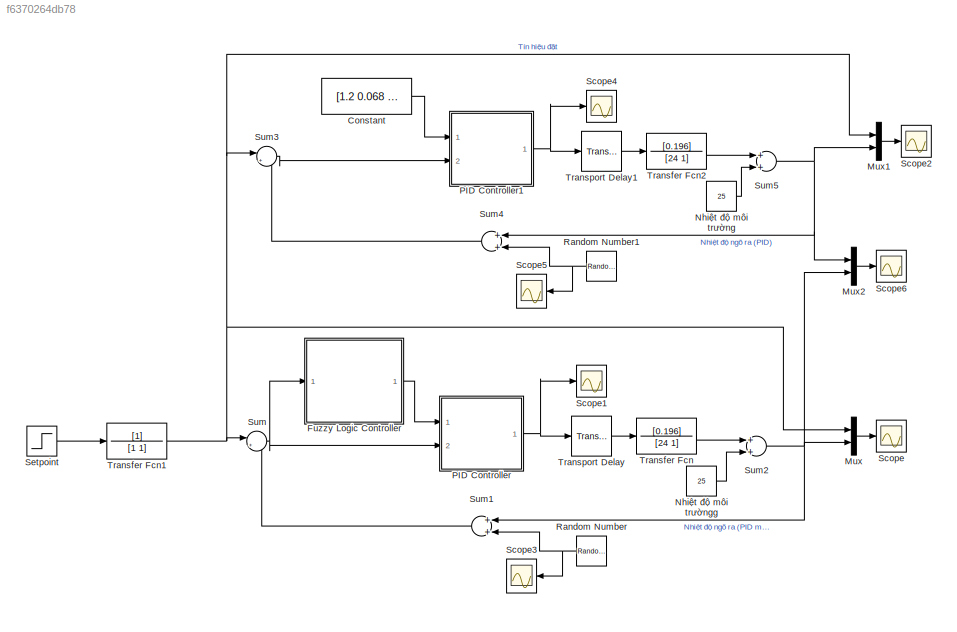
MODEL slx_f6370264db78
KIND model
CONFIG AbsTol = auto
CONFIG FixedStep = 0.1
CONFIG MaxStep = 0.1
CONFIG MinStep = auto
CONFIG RelTol = 1e-3
CONFIG SampleTimeConstraint = Unconstrained
CONFIG Solver = ode5
CONFIG SolverMode = SingleTasking
CONFIG SolverName = ode5
CONFIG StartTime = 0.0
CONFIG StopTime = 400
BLOCK [Constant] Constant
  Value = [1.2 0.068 1]
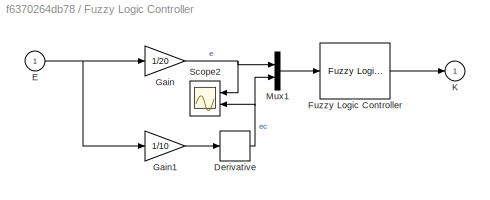
BLOCK [SubSystem] Fuzzy Logic Controller
  Ports = [1, 1]
  RequestExecContextInheritance = off
BLOCK [Derivative] Fuzzy Logic Controller/Derivative
BLOCK [Inport] Fuzzy Logic Controller/E
  IconDisplay = Port number
BLOCK [Reference] Fuzzy Logic Controller/Fuzzy Logic Controller  REF=fuzblock/Fuzzy Logic   (lib defined in mdl_858b3b3e7478)
Controller
  Ports = [1, 1]
  SourceBlock = fuzblock/Fuzzy Logic \nController
  SourceType = Fuzzy Inference System
BLOCK [Gain] Fuzzy Logic Controller/Gain
  Gain = 1/20
  OutDataTypeStr = Inherit: Inherit via internal rule
  ParamDataTypeStr = Inherit: Inherit via internal rule
  SaturateOnIntegerOverflow = off
BLOCK [Gain] Fuzzy Logic Controller/Gain1
  Gain = 1/10
  OutDataTypeStr = Inherit: Inherit via internal rule
  ParamDataTypeStr = Inherit: Inherit via internal rule
  SaturateOnIntegerOverflow = off
BLOCK [Outport] Fuzzy Logic Controller/K
  IconDisplay = Port number
BLOCK [Mux] Fuzzy Logic Controller/Mux1
  DisplayOption = bar
  Inputs = 2
  Ports = [2, 1]
BLOCK [Scope] Fuzzy Logic Controller/Scope2
  Floating = off
  NumInputPorts = 2
  Ports = [2]
  ScopeSpecificationString = Simulink.scopes.TimeScopeBlockCfg('CurrentConfiguration', extmgr.ConfigurationSet(extmgr.Configuration('Core','General UI',true,'FigureColor',[1 1 1],'DisplayFullSourceName',true),extmgr.Configuration('Core','Source UI',true),extmgr.Configuration('Sources','WiredSimulink',true,'DataLoggingVariableName','ScopeData1','DataLoggingSaveFormat','Array','DataLoggingDecimation','1'),extmgr.Configuration('...<+2607ch>
BLOCK [Mux] Mux
  DisplayOption = bar
  Inputs = 2
  Ports = [2, 1]
BLOCK [Mux] Mux1
  DisplayOption = bar
  Inputs = 2
  Ports = [2, 1]
BLOCK [Mux] Mux2
  DisplayOption = bar
  Inputs = 2
  Ports = [2, 1]
BLOCK [Constant] Nhiệt độ môi trường
  Value = 25
BLOCK [Constant] Nhiệt độ môi trườngg
  Value = 25
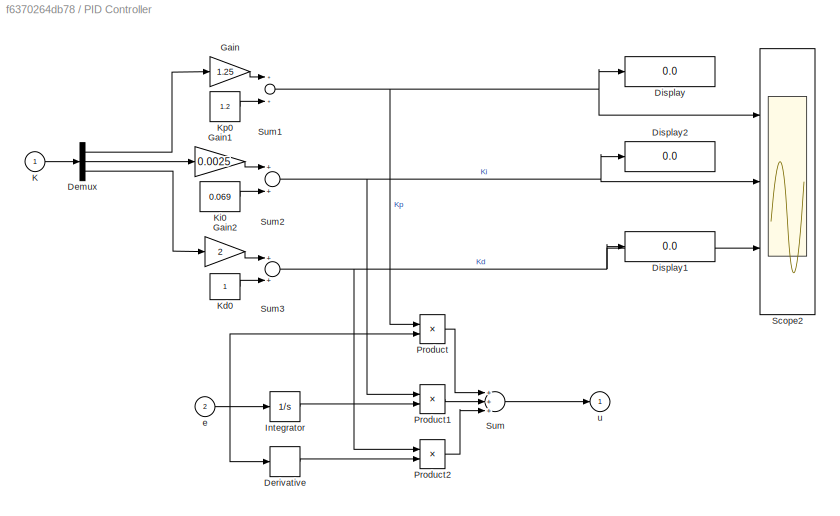
BLOCK [SubSystem] PID Controller
  AncestorBlock = simulink_extras/Additional\nLinear/PID Controller
  Ports = [2, 1]
  RequestExecContextInheritance = off
BLOCK [Demux] PID Controller/Demux
  Outputs = 3
  Ports = [1, 3]
BLOCK [Derivative] PID Controller/Derivative
BLOCK [Display] PID Controller/Display
  Decimation = 1
  Ports = [1]
BLOCK [Display] PID Controller/Display1
  Decimation = 1
  Ports = [1]
BLOCK [Display] PID Controller/Display2
  Decimation = 1
  Ports = [1]
BLOCK [Gain] PID Controller/Gain
  Gain = 1.25
  OutDataTypeStr = Inherit: Inherit via internal rule
  ParamDataTypeStr = Inherit: Inherit via internal rule
  SaturateOnIntegerOverflow = off
BLOCK [Gain] PID Controller/Gain1
  Gain = 0.0025
  OutDataTypeStr = Inherit: Inherit via internal rule
  ParamDataTypeStr = Inherit: Inherit via internal rule
  SaturateOnIntegerOverflow = off
BLOCK [Gain] PID Controller/Gain2
  Gain = 2
  OutDataTypeStr = Inherit: Inherit via internal rule
  ParamDataTypeStr = Inherit: Inherit via internal rule
  SaturateOnIntegerOverflow = off
BLOCK [Integrator] PID Controller/Integrator
  Ports = [1, 1]
BLOCK [Inport] PID Controller/K
  IconDisplay = Port number
BLOCK [Constant] PID Controller/Kd0
BLOCK [Constant] PID Controller/Ki0
  Value = 0.069
BLOCK [Constant] PID Controller/Kp0
  Value = 1.2
BLOCK [Product] PID Controller/Product
  InputSameDT = off
  Ports = [2, 1]
  RndMeth = Floor
BLOCK [Product] PID Controller/Product1
  InputSameDT = off
  Ports = [2, 1]
  RndMeth = Floor
BLOCK [Product] PID Controller/Product2
  InputSameDT = off
  Ports = [2, 1]
  RndMeth = Floor
BLOCK [Scope] PID Controller/Scope2
  Floating = off
  NumInputPorts = 3
  Ports = [3]
  ScopeSpecificationString = Simulink.scopes.TimeScopeBlockCfg('CurrentConfiguration', extmgr.ConfigurationSet(extmgr.Configuration('Core','General UI',true,'FigureColor',[1 1 1],'DisplayFullSourceName',true),extmgr.Configuration('Core','Source UI',true),extmgr.Configuration('Sources','WiredSimulink',true,'DataLoggingVariableName','ScopeData2','DataLoggingSaveFormat','Array','DataLoggingDecimation','1'),extmgr.Configuration('...<+3442ch>
BLOCK [Sum] PID Controller/Sum
  Inputs = +++
  Ports = [3, 1]
BLOCK [Sum] PID Controller/Sum1
  Ports = [2, 1]
BLOCK [Sum] PID Controller/Sum2
  Ports = [2, 1]
BLOCK [Sum] PID Controller/Sum3
  Ports = [2, 1]
BLOCK [Inport] PID Controller/e
  IconDisplay = Port number
  Port = 2
BLOCK [Outport] PID Controller/u
  IconDisplay = Port number
  InitialOutput = 0
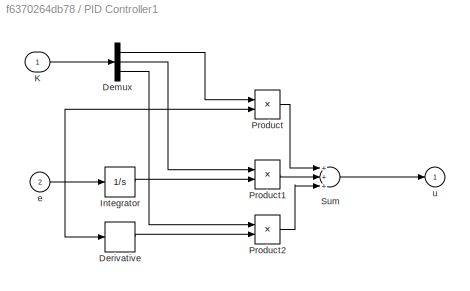
BLOCK [SubSystem] PID Controller1
  AncestorBlock = simulink_extras/Additional\nLinear/PID Controller
  Ports = [2, 1]
  RequestExecContextInheritance = off
BLOCK [Demux] PID Controller1/Demux
  Outputs = 3
  Ports = [1, 3]
BLOCK [Derivative] PID Controller1/Derivative
BLOCK [Integrator] PID Controller1/Integrator
  Ports = [1, 1]
BLOCK [Inport] PID Controller1/K
  IconDisplay = Port number
BLOCK [Product] PID Controller1/Product
  InputSameDT = off
  Ports = [2, 1]
  RndMeth = Floor
BLOCK [Product] PID Controller1/Product1
  InputSameDT = off
  Ports = [2, 1]
  RndMeth = Floor
BLOCK [Product] PID Controller1/Product2
  InputSameDT = off
  Ports = [2, 1]
  RndMeth = Floor
BLOCK [Sum] PID Controller1/Sum
  Inputs = +++
  Ports = [3, 1]
BLOCK [Inport] PID Controller1/e
  IconDisplay = Port number
  Port = 2
BLOCK [Outport] PID Controller1/u
  IconDisplay = Port number
  InitialOutput = 0
BLOCK [RandomNumber] Random Number
  Variance = 0.1
BLOCK [RandomNumber] Random Number1
  Variance = 0.1
BLOCK [Scope] Scope
  Floating = off
  NumInputPorts = 1
  Ports = [1]
  ScopeSpecificationString = Simulink.scopes.TimeScopeBlockCfg('CurrentConfiguration', extmgr.ConfigurationSet(extmgr.Configuration('Core','General UI',true,'FigureColor',[1 1 1]),extmgr.Configuration('Core','Source UI',true),extmgr.Configuration('Sources','WiredSimulink',true,'DataLogging',true,'DataLoggingVariableName','TankLevel','DataLoggingSaveFormat','Array','DataLoggingDecimation','1','DataLoggingDecimateData',true),ex...<+1972ch>
BLOCK [Scope] Scope1
  Floating = off
  NumInputPorts = 1
  Ports = [1]
  ScopeSpecificationString = Simulink.scopes.TimeScopeBlockCfg('CurrentConfiguration', extmgr.ConfigurationSet(extmgr.Configuration('Core','General UI',true),extmgr.Configuration('Core','Source UI',true),extmgr.Configuration('Sources','WiredSimulink',true,'DataLogging',true,'DataLoggingVariableName','TankLevel1','DataLoggingSaveFormat','Array','DataLoggingDecimation','1','DataLoggingDecimateData',true),extmgr.Configuration('V...<+1714ch>
BLOCK [Scope] Scope2
  Floating = off
  NumInputPorts = 1
  Ports = [1]
  ScopeSpecificationString = Simulink.scopes.TimeScopeBlockCfg('CurrentConfiguration', extmgr.ConfigurationSet(extmgr.Configuration('Core','General UI',true,'FigureColor',[1 1 1]),extmgr.Configuration('Core','Source UI',true),extmgr.Configuration('Sources','WiredSimulink',true,'DataLogging',true,'DataLoggingVariableName','ScopeData4','DataLoggingSaveFormat','Array','DataLoggingDecimation','1','DataLoggingDecimateData',true),e...<+1952ch>
BLOCK [Scope] Scope3
  Floating = off
  NumInputPorts = 1
  Ports = [1]
  ScopeSpecificationString = Simulink.scopes.TimeScopeBlockCfg('CurrentConfiguration', extmgr.ConfigurationSet(extmgr.Configuration('Core','General UI',true,'FigureColor',[1 1 1],'DisplayFullSourceName',true),extmgr.Configuration('Core','Source UI',true),extmgr.Configuration('Sources','WiredSimulink',true,'DataLoggingVariableName','ScopeData3','DataLoggingSaveFormat','Array','DataLoggingDecimation','1'),extmgr.Configuration('...<+1903ch>
BLOCK [Scope] Scope4
  Floating = off
  NumInputPorts = 1
  Ports = [1]
  ScopeSpecificationString = Simulink.scopes.TimeScopeBlockCfg('CurrentConfiguration', extmgr.ConfigurationSet(extmgr.Configuration('Core','General UI',true),extmgr.Configuration('Core','Source UI',true),extmgr.Configuration('Sources','WiredSimulink',true,'DataLogging',true,'DataLoggingVariableName','ScopeData5','DataLoggingSaveFormat','Array','DataLoggingDecimation','1','DataLoggingDecimateData',true),extmgr.Configuration('V...<+1698ch>
BLOCK [Scope] Scope5
  Floating = off
  NumInputPorts = 1
  Ports = [1]
  ScopeSpecificationString = Simulink.scopes.TimeScopeBlockCfg('CurrentConfiguration', extmgr.ConfigurationSet(extmgr.Configuration('Core','General UI',true,'FigureColor',[1 1 1],'DisplayFullSourceName',true),extmgr.Configuration('Core','Source UI',true),extmgr.Configuration('Sources','WiredSimulink',true,'DataLoggingVariableName','ScopeData6','DataLoggingSaveFormat','Array','DataLoggingDecimation','1'),extmgr.Configuration('...<+1904ch>
BLOCK [Scope] Scope6
  Floating = off
  NumInputPorts = 1
  Ports = [1]
  ScopeSpecificationString = Simulink.scopes.TimeScopeBlockCfg('CurrentConfiguration', extmgr.ConfigurationSet(extmgr.Configuration('Core','General UI',true,'FigureColor',[1 1 1]),extmgr.Configuration('Core','Source UI',true),extmgr.Configuration('Sources','WiredSimulink',true,'DataLogging',true,'DataLoggingVariableName','ScopeData7','DataLoggingSaveFormat','Array','DataLoggingDecimation','1','DataLoggingDecimateData',true),e...<+1918ch>
BLOCK [Step] Setpoint
  After = 360
  Before = 25
  SampleTime = 0
  Time = 20.7
BLOCK [Sum] Sum
  IconShape = round
  InputSameDT = off
  Inputs = |+-
  OutDataTypeStr = Inherit: Inherit via internal rule
  Ports = [2, 1]
BLOCK [Sum] Sum1
  InputSameDT = off
  OutDataTypeStr = Inherit: Inherit via internal rule
  Ports = [2, 1]
BLOCK [Sum] Sum2
  InputSameDT = off
  OutDataTypeStr = Inherit: Inherit via internal rule
  Ports = [2, 1]
BLOCK [Sum] Sum3
  IconShape = round
  InputSameDT = off
  Inputs = |+-
  OutDataTypeStr = Inherit: Inherit via internal rule
  Ports = [2, 1]
BLOCK [Sum] Sum4
  InputSameDT = off
  OutDataTypeStr = Inherit: Inherit via internal rule
  Ports = [2, 1]
BLOCK [Sum] Sum5
  InputSameDT = off
  OutDataTypeStr = Inherit: Inherit via internal rule
  Ports = [2, 1]
BLOCK [TransferFcn] Transfer Fcn
  Denominator = [24 1]
  Numerator = [0.196]
BLOCK [TransferFcn] Transfer Fcn1
  Denominator = [1 1]
BLOCK [TransferFcn] Transfer Fcn2
  Denominator = [24 1]
  Numerator = [0.196]
BLOCK [TransportDelay] Transport Delay
  DelayTime = 20.7
  Ports = [1, 1]
BLOCK [TransportDelay] Transport Delay1
  DelayTime = 20.7
  Ports = [1, 1]
LINE Constant:1 -> PID Controller1:1
NET Fuzzy Logic Controller/Derivative:1 -> Fuzzy Logic Controller/Mux1:2, Fuzzy Logic Controller/Scope2:2
NET Fuzzy Logic Controller/E:1 -> Fuzzy Logic Controller/Gain1:1, Fuzzy Logic Controller/Gain:1
LINE Fuzzy Logic Controller/Fuzzy Logic Controller:1 -> Fuzzy Logic Controller/K:1
LINE Fuzzy Logic Controller/Gain1:1 -> Fuzzy Logic Controller/Derivative:1
NET Fuzzy Logic Controller/Gain:1 -> Fuzzy Logic Controller/Mux1:1, Fuzzy Logic Controller/Scope2:1
LINE Fuzzy Logic Controller/Mux1:1 -> Fuzzy Logic Controller/Fuzzy Logic Controller:1
LINE Fuzzy Logic Controller:1 -> PID Controller:1
LINE Mux1:1 -> Scope2:1
LINE Mux2:1 -> Scope6:1
LINE Mux:1 -> Scope:1
LINE Nhiệt độ môi trường:1 -> Sum5:2
LINE Nhiệt độ môi trườngg:1 -> Sum2:2
NET PID Controller1:1 -> Scope4:1, Transport Delay1:1
NET PID Controller:1 -> Scope1:1, Transport Delay:1
NET Random Number1:1 -> Scope5:1, Sum4:2
NET Random Number:1 -> Scope3:1, Sum1:2
LINE Setpoint:1 -> Transfer Fcn1:1
LINE Sum1:1 -> Sum:2
NET Sum2:1 -> Mux2:2, Mux:2, Sum1:1
LINE Sum3:1 -> PID Controller1:2
LINE Sum4:1 -> Sum3:2
NET Sum5:1 -> Mux1:2, Mux2:1, Sum4:1
NET Sum:1 -> Fuzzy Logic Controller:1, PID Controller:2
NET Transfer Fcn1:1 -> Mux1:1, Mux:1, Sum3:1, Sum:1
LINE Transfer Fcn2:1 -> Sum5:1
LINE Transfer Fcn:1 -> Sum2:1
LINE Transport Delay1:1 -> Transfer Fcn2:1
LINE Transport Delay:1 -> Transfer Fcn:1
note: NET lines group one-source signal fan-out (src -> all destinations, sorted); 1:1 wires keep LINE
